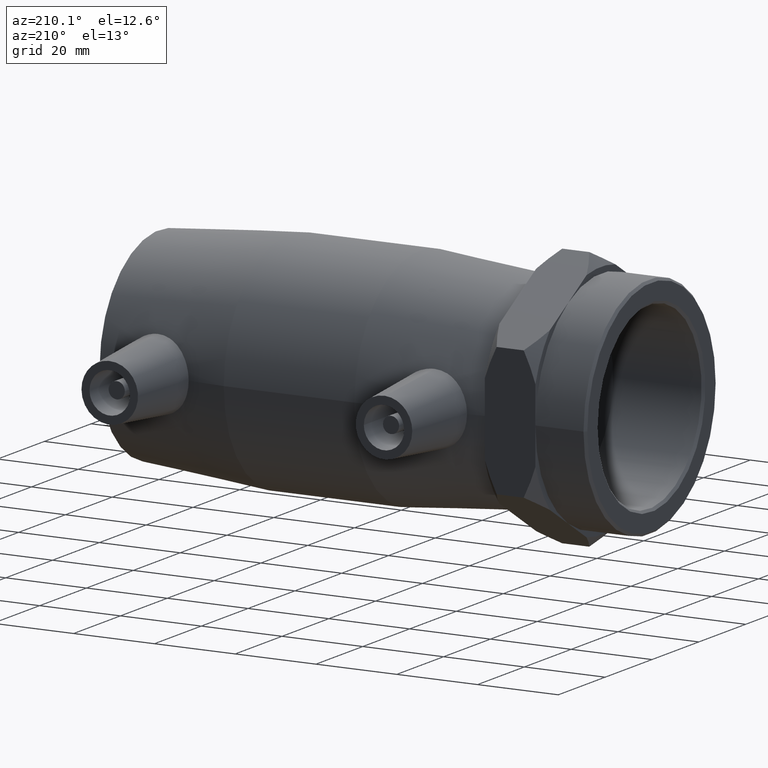
[diagram: clean part render]
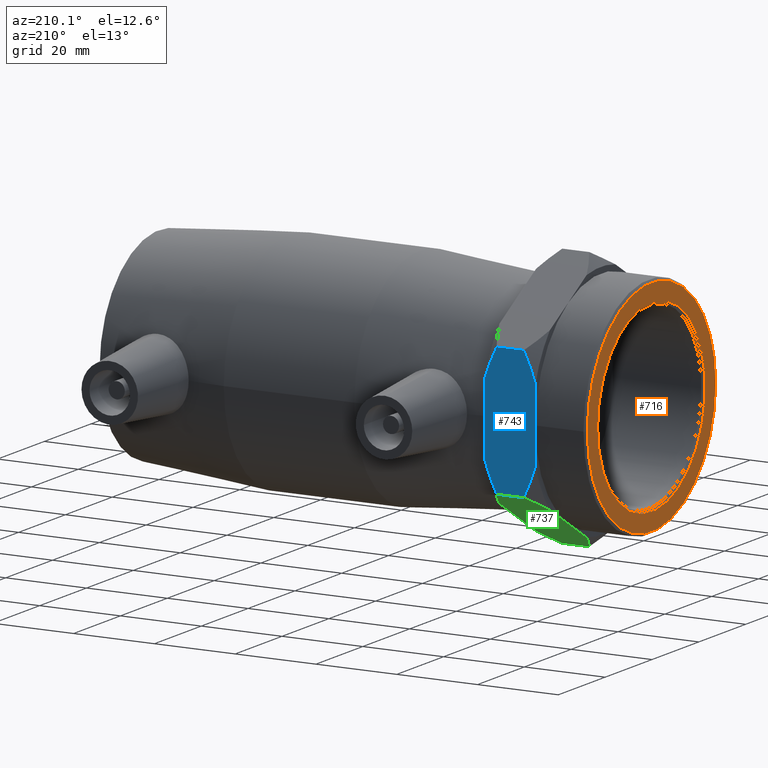
[diagram: same view with three faces highlighted in distinct colors, each labeled with its STEP entity id]
A machine part, auxiliary view with three faces highlighted in distinct colors.
Their STEP definitions:

[orange] entity #716 — the highlighted planar face has unit normal (-1, 0, 0).
#100=PLANE('',#778);
#127=FACE_BOUND('',#216,.T.);
#157=FACE_OUTER_BOUND('',#215,.T.);
#215=EDGE_LOOP('',(#510));
#216=EDGE_LOOP('',(#511));
#296=CIRCLE('',#777,23.0225);
#297=CIRCLE('',#779,27.4);
#341=VERTEX_POINT('',#1106);
#342=VERTEX_POINT('',#1109);
#412=EDGE_CURVE('',#341,#341,#296,.T.);
#413=EDGE_CURVE('',#342,#342,#297,.T.);
#510=ORIENTED_EDGE('',*,*,#413,.F.);
#511=ORIENTED_EDGE('',*,*,#412,.F.);
#716=ADVANCED_FACE('',(#157,#127),#100,.T.);
#777=AXIS2_PLACEMENT_3D('',#1107,#887,#888);
#778=AXIS2_PLACEMENT_3D('',#1108,#889,#890);
#779=AXIS2_PLACEMENT_3D('',#1110,#891,#892);
#887=DIRECTION('center_axis',(-1.,0.,0.));
#888=DIRECTION('ref_axis',(0.,-1.,0.));
#889=DIRECTION('center_axis',(-1.,0.,0.));
#890=DIRECTION('ref_axis',(0.,0.,1.));
#891=DIRECTION('center_axis',(1.,0.,0.));
#892=DIRECTION('ref_axis',(0.,-1.,0.));
#1106=CARTESIAN_POINT('',(-73.5,23.0225,-2.81944309333699E-15));
#1107=CARTESIAN_POINT('Origin',(-73.5,0.,0.));
#1108=CARTESIAN_POINT('Origin',(-73.5,28.,0.));
#1109=CARTESIAN_POINT('',(-73.5,27.4,3.35553222966375E-15));
#1110=CARTESIAN_POINT('Origin',(-73.5,0.,0.));

[blue] entity #743 — the highlighted planar face has unit normal (0, 1, 0).
#20=LINE('',#1267,#44);
#29=LINE('',#1280,#53);
#31=LINE('',#1283,#55);
#36=LINE('',#1290,#60);
#40=LINE('',#1297,#64);
#44=VECTOR('',#970,9.06752258891828);
#53=VECTOR('',#987,6.70000000000002);
#55=VECTOR('',#991,9.06752258891829);
#60=VECTOR('',#1000,6.70000000000002);
#64=VECTOR('',#1010,18.1350451778365);
#65=(
BOUNDED_CURVE()
B_SPLINE_CURVE(2,(#1133,#1134,#1135),.UNSPECIFIED.,.F.,.F.)
B_SPLINE_CURVE_WITH_KNOTS((3,3),(0.,0.767433549102513),.UNSPECIFIED.)
CURVE()
GEOMETRIC_REPRESENTATION_ITEM()
RATIONAL_B_SPLINE_CURVE((1.,1.00667029966213,1.))
REPRESENTATION_ITEM('')
);
#69=(
BOUNDED_CURVE()
B_SPLINE_CURVE(2,(#1155,#1156,#1157),.UNSPECIFIED.,.F.,.F.)
B_SPLINE_CURVE_WITH_KNOTS((3,3),(0.,0.767433549102513),.UNSPECIFIED.)
CURVE()
GEOMETRIC_REPRESENTATION_ITEM()
RATIONAL_B_SPLINE_CURVE((1.,1.00667029966216,1.))
REPRESENTATION_ITEM('')
);
#81=(
BOUNDED_CURVE()
B_SPLINE_CURVE(2,(#1221,#1222,#1223),.UNSPECIFIED.,.F.,.F.)
B_SPLINE_CURVE_WITH_KNOTS((3,3),(0.,0.767433549102516),.UNSPECIFIED.)
CURVE()
GEOMETRIC_REPRESENTATION_ITEM()
RATIONAL_B_SPLINE_CURVE((1.,1.00667029966218,1.))
REPRESENTATION_ITEM('')
);
#85=(
BOUNDED_CURVE()
B_SPLINE_CURVE(2,(#1243,#1244,#1245),.UNSPECIFIED.,.F.,.F.)
B_SPLINE_CURVE_WITH_KNOTS((3,3),(0.,0.767433549102516),.UNSPECIFIED.)
CURVE()
GEOMETRIC_REPRESENTATION_ITEM()
RATIONAL_B_SPLINE_CURVE((1.,1.00667029966226,1.))
REPRESENTATION_ITEM('')
);
#112=PLANE('',#826);
#184=FACE_OUTER_BOUND('',#246,.T.);
#246=EDGE_LOOP('',(#628,#629,#630,#631,#632,#633,#634,#635,#636));
#345=VERTEX_POINT('',#1118);
#351=VERTEX_POINT('',#1131);
#352=VERTEX_POINT('',#1132);
#357=VERTEX_POINT('',#1153);
#358=VERTEX_POINT('',#1154);
#375=VERTEX_POINT('',#1219);
#376=VERTEX_POINT('',#1220);
#381=VERTEX_POINT('',#1241);
#382=VERTEX_POINT('',#1242);
#422=EDGE_CURVE('',#351,#352,#65,.T.);
#428=EDGE_CURVE('',#357,#358,#69,.T.);
#446=EDGE_CURVE('',#375,#376,#81,.T.);
#452=EDGE_CURVE('',#381,#382,#85,.T.);
#461=EDGE_CURVE('',#345,#358,#20,.T.);
#470=EDGE_CURVE('',#382,#357,#29,.T.);
#472=EDGE_CURVE('',#351,#345,#31,.T.);
#477=EDGE_CURVE('',#375,#352,#36,.T.);
#481=EDGE_CURVE('',#376,#381,#40,.T.);
#628=ORIENTED_EDGE('',*,*,#428,.T.);
#629=ORIENTED_EDGE('',*,*,#461,.F.);
#630=ORIENTED_EDGE('',*,*,#472,.F.);
#631=ORIENTED_EDGE('',*,*,#422,.T.);
#632=ORIENTED_EDGE('',*,*,#477,.F.);
#633=ORIENTED_EDGE('',*,*,#446,.T.);
#634=ORIENTED_EDGE('',*,*,#481,.T.);
#635=ORIENTED_EDGE('',*,*,#452,.T.);
#636=ORIENTED_EDGE('',*,*,#470,.T.);
#743=ADVANCED_FACE('',(#184),#112,.T.);
#826=AXIS2_PLACEMENT_3D('',#1296,#1008,#1009);
#970=DIRECTION('',(0.,1.51089925358708E-15,-1.));
#987=DIRECTION('',(-1.,0.,0.));
#991=DIRECTION('',(0.,1.51089925358708E-15,-1.));
#1000=DIRECTION('',(-1.,0.,0.));
#1008=DIRECTION('center_axis',(0.,1.,1.51089925358708E-15));
#1009=DIRECTION('ref_axis',(0.,1.4210854715202E-15,-1.));
#1010=DIRECTION('',(0.,1.51089925358708E-15,-1.));
#1118=CARTESIAN_POINT('',(-61.,28.,4.23051791004384E-14));
#1131=CARTESIAN_POINT('',(-61.,28.,9.06752258891833));
#1132=CARTESIAN_POINT('',(-58.1,28.,16.1658075373096));
#1133=CARTESIAN_POINT('Ctrl Pts',(-61.,28.,9.06752258891835));
#1134=CARTESIAN_POINT('Ctrl Pts',(-59.9578935726549,28.,12.4500203919998));
#1135=CARTESIAN_POINT('Ctrl Pts',(-58.1,28.,16.1658075373096));
#1153=CARTESIAN_POINT('',(-58.1,28.,-16.1658075373095));
#1154=CARTESIAN_POINT('',(-61.,28.,-9.06752258891824));
#1155=CARTESIAN_POINT('Ctrl Pts',(-58.1,28.,-16.1658075373095));
#1156=CARTESIAN_POINT('Ctrl Pts',(-59.9578935726549,28.,-12.4500203919997));
#1157=CARTESIAN_POINT('Ctrl Pts',(-61.,28.,-9.06752258891826));
#1219=CARTESIAN_POINT('',(-51.4,28.,16.1658075373096));
#1220=CARTESIAN_POINT('',(-48.5,28.,9.06752258891831));
#1221=CARTESIAN_POINT('Ctrl Pts',(-51.4,28.,16.1658075373096));
#1222=CARTESIAN_POINT('Ctrl Pts',(-49.5421064273451,28.,12.4500203919998));
#1223=CARTESIAN_POINT('Ctrl Pts',(-48.5,28.,9.06752258891832));
#1241=CARTESIAN_POINT('',(-48.5,28.,-9.06752258891822));
#1242=CARTESIAN_POINT('',(-51.4,28.,-16.1658075373095));
#1243=CARTESIAN_POINT('Ctrl Pts',(-48.5,28.,-9.06752258891823));
#1244=CARTESIAN_POINT('Ctrl Pts',(-49.5421064273451,28.,-12.4500203919997));
#1245=CARTESIAN_POINT('Ctrl Pts',(-51.4,28.,-16.1658075373095));
#1267=CARTESIAN_POINT('',(-61.,28.,16.1658075373096));
#1280=CARTESIAN_POINT('',(-48.5,28.,-16.1658075373095));
#1283=CARTESIAN_POINT('',(-61.,28.,16.1658075373096));
#1290=CARTESIAN_POINT('',(-48.5,28.,16.1658075373096));
#1296=CARTESIAN_POINT('Origin',(-48.5,28.,4.44089209850063E-14));
#1297=CARTESIAN_POINT('',(-48.5,28.,16.1658075373096));

[green] entity #737 — the highlighted planar face has unit normal (0, 0.5, -0.866).
#18=LINE('',#1264,#42);
#19=LINE('',#1266,#43);
#25=LINE('',#1275,#49);
#29=LINE('',#1280,#53);
#30=LINE('',#1281,#54);
#42=VECTOR('',#966,9.06752258891828);
#43=VECTOR('',#969,9.06752258891827);
#49=VECTOR('',#981,6.70000000000002);
#53=VECTOR('',#987,6.70000000000002);
#54=VECTOR('',#988,18.1350451778365);
#70=(
BOUNDED_CURVE()
B_SPLINE_CURVE(2,(#1159,#1160,#1161),.UNSPECIFIED.,.F.,.F.)
B_SPLINE_CURVE_WITH_KNOTS((3,3),(0.,0.767433549102517),.UNSPECIFIED.)
CURVE()
GEOMETRIC_REPRESENTATION_ITEM()
RATIONAL_B_SPLINE_CURVE((1.,1.00667029966221,1.))
REPRESENTATION_ITEM('')
);
#75=(
BOUNDED_CURVE()
B_SPLINE_CURVE(2,(#1188,#1189,#1190),.UNSPECIFIED.,.F.,.F.)
B_SPLINE_CURVE_WITH_KNOTS((3,3),(0.,0.767433549102515),.UNSPECIFIED.)
CURVE()
GEOMETRIC_REPRESENTATION_ITEM()
RATIONAL_B_SPLINE_CURVE((1.,1.00667029966222,1.))
REPRESENTATION_ITEM('')
);
#86=(
BOUNDED_CURVE()
B_SPLINE_CURVE(2,(#1248,#1249,#1250),.UNSPECIFIED.,.F.,.F.)
B_SPLINE_CURVE_WITH_KNOTS((3,3),(0.,0.767433549102518),.UNSPECIFIED.)
CURVE()
GEOMETRIC_REPRESENTATION_ITEM()
RATIONAL_B_SPLINE_CURVE((1.,1.00667029966221,1.))
REPRESENTATION_ITEM('')
);
#87=(
BOUNDED_CURVE()
B_SPLINE_CURVE(2,(#1254,#1255,#1256),.UNSPECIFIED.,.F.,.F.)
B_SPLINE_CURVE_WITH_KNOTS((3,3),(0.,0.767433549102517),.UNSPECIFIED.)
CURVE()
GEOMETRIC_REPRESENTATION_ITEM()
RATIONAL_B_SPLINE_CURVE((1.,1.00667029966217,1.))
REPRESENTATION_ITEM('')
);
#106=PLANE('',#820);
#178=FACE_OUTER_BOUND('',#240,.T.);
#240=EDGE_LOOP('',(#584,#585,#586,#587,#588,#589,#590,#591,#592));
#346=VERTEX_POINT('',#1119);
#357=VERTEX_POINT('',#1153);
#359=VERTEX_POINT('',#1158);
#366=VERTEX_POINT('',#1186);
#367=VERTEX_POINT('',#1187);
#382=VERTEX_POINT('',#1242);
#383=VERTEX_POINT('',#1246);
#384=VERTEX_POINT('',#1252);
#385=VERTEX_POINT('',#1253);
#429=EDGE_CURVE('',#359,#357,#70,.T.);
#437=EDGE_CURVE('',#366,#367,#75,.T.);
#454=EDGE_CURVE('',#382,#383,#86,.T.);
#455=EDGE_CURVE('',#384,#385,#87,.T.);
#459=EDGE_CURVE('',#346,#367,#18,.T.);
#460=EDGE_CURVE('',#359,#346,#19,.T.);
#466=EDGE_CURVE('',#385,#366,#25,.T.);
#470=EDGE_CURVE('',#382,#357,#29,.T.);
#471=EDGE_CURVE('',#383,#384,#30,.T.);
#584=ORIENTED_EDGE('',*,*,#437,.T.);
#585=ORIENTED_EDGE('',*,*,#459,.F.);
#586=ORIENTED_EDGE('',*,*,#460,.F.);
#587=ORIENTED_EDGE('',*,*,#429,.T.);
#588=ORIENTED_EDGE('',*,*,#470,.F.);
#589=ORIENTED_EDGE('',*,*,#454,.T.);
#590=ORIENTED_EDGE('',*,*,#471,.T.);
#591=ORIENTED_EDGE('',*,*,#455,.T.);
#592=ORIENTED_EDGE('',*,*,#466,.T.);
#737=ADVANCED_FACE('',(#178),#106,.T.);
#820=AXIS2_PLACEMENT_3D('',#1279,#985,#986);
#966=DIRECTION('',(0.,-0.866025403784438,-0.500000000000001));
#969=DIRECTION('',(0.,-0.866025403784438,-0.500000000000001));
#981=DIRECTION('',(-1.,0.,0.));
#985=DIRECTION('center_axis',(0.,0.500000000000001,-0.866025403784438));
#986=DIRECTION('ref_axis',(0.,-0.866025403784438,-0.500000000000001));
#987=DIRECTION('',(-1.,0.,0.));
#988=DIRECTION('',(0.,-0.866025403784438,-0.500000000000001));
#1119=CARTESIAN_POINT('',(-61.,14.,-24.2487113059643));
#1153=CARTESIAN_POINT('',(-58.1,28.,-16.1658075373095));
#1158=CARTESIAN_POINT('',(-61.,21.8527049113925,-19.7149500115051));
#1159=CARTESIAN_POINT('Ctrl Pts',(-61.,21.8527049113925,-19.7149500115051));
#1160=CARTESIAN_POINT('Ctrl Pts',(-59.9578935726549,24.7820339371061,-18.0237011099644));
#1161=CARTESIAN_POINT('Ctrl Pts',(-58.1,28.,-16.1658075373095));
#1186=CARTESIAN_POINT('',(-58.1,4.88498130835069E-14,-32.3316150746191));
#1187=CARTESIAN_POINT('',(-61.,6.14729508860758,-28.7824726004234));
#1188=CARTESIAN_POINT('Ctrl Pts',(-58.1,4.88187791500511E-14,-32.3316150746191));
#1189=CARTESIAN_POINT('Ctrl Pts',(-59.9578935726549,3.21796606289401,-30.4737215019641));
#1190=CARTESIAN_POINT('Ctrl Pts',(-61.,6.1472950886076,-28.7824726004234));
#1242=CARTESIAN_POINT('',(-51.4,28.,-16.1658075373095));
#1246=CARTESIAN_POINT('',(-48.5,21.8527049113925,-19.7149500115051));
#1248=CARTESIAN_POINT('Ctrl Pts',(-51.4,28.,-16.1658075373095));
#1249=CARTESIAN_POINT('Ctrl Pts',(-49.5421064273451,24.7820339371061,-18.0237011099644));
#1250=CARTESIAN_POINT('Ctrl Pts',(-48.5,21.8527049113925,-19.7149500115051));
#1252=CARTESIAN_POINT('',(-48.5,6.14729508860759,-28.7824726004234));
#1253=CARTESIAN_POINT('',(-51.4,5.77315972805081E-14,-32.3316150746191));
#1254=CARTESIAN_POINT('Ctrl Pts',(-48.5,6.1472950886076,-28.7824726004234));
#1255=CARTESIAN_POINT('Ctrl Pts',(-49.5421064273451,3.21796606289398,-30.4737215019642));
#1256=CARTESIAN_POINT('Ctrl Pts',(-51.4,3.95199640738509E-14,-32.3316150746191));
#1264=CARTESIAN_POINT('',(-61.,28.,-16.1658075373095));
#1266=CARTESIAN_POINT('',(-61.,28.,-16.1658075373095));
#1275=CARTESIAN_POINT('',(-48.5,4.34217380796288E-14,-32.3316150746191));
#1279=CARTESIAN_POINT('Origin',(-48.5,28.,-16.1658075373095));
#1280=CARTESIAN_POINT('',(-48.5,28.,-16.1658075373095));
#1281=CARTESIAN_POINT('',(-48.5,28.,-16.1658075373095));